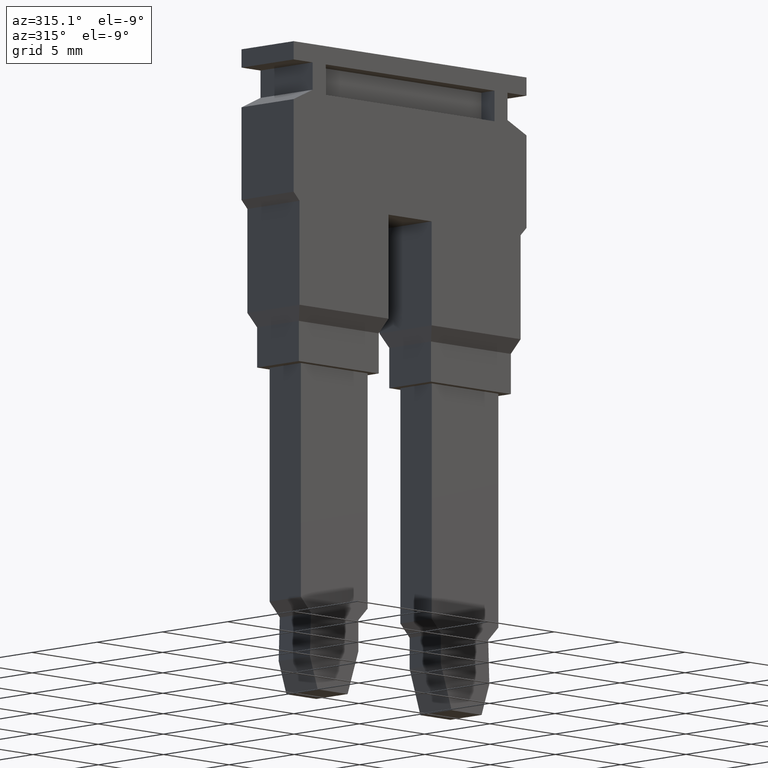
[diagram: clean part render]
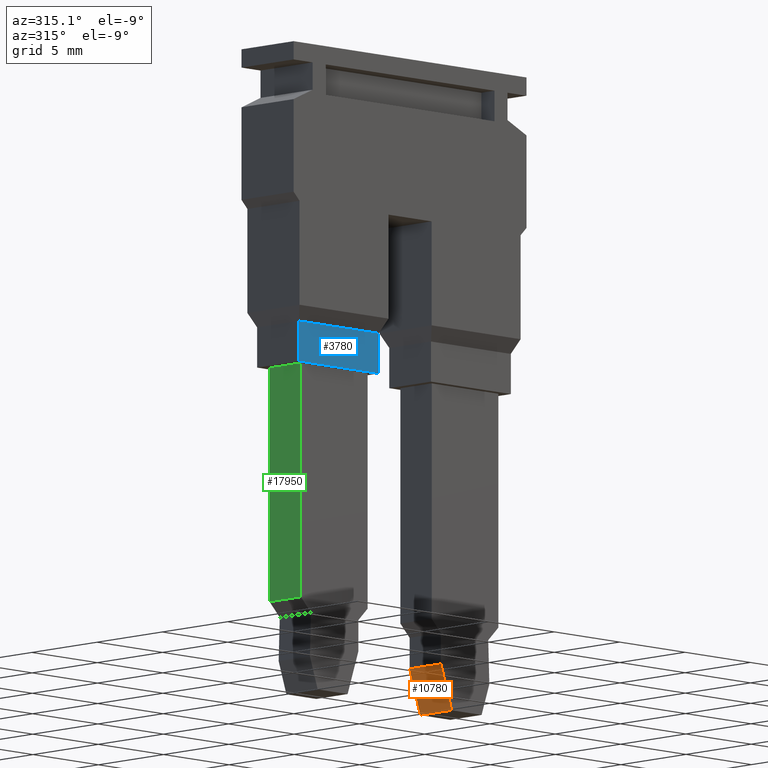
[diagram: same view with three faces highlighted in distinct colors, each labeled with its STEP entity id]
A machine part, auxiliary view with three faces highlighted in distinct colors.
Their STEP definitions:

[orange] entity #10780 — the highlighted planar face has unit normal (0.9476, 0, 0.3194).
#7830=CARTESIAN_POINT('',(-5.5999999994634,16.1494740000096,
3.97570635701532));
#7840=VERTEX_POINT('',#7830);
#7870=CARTESIAN_POINT('',(-5.5999999998083,35.8654186232052,
-2.66902050418254));
#7880=DIRECTION('',(-1.657692640812E-11,0.94762914753996,
-0.3193728209048));
#7890=VECTOR('',#7880,1.);
#7900=LINE('',#7870,#7890);
#7910=CARTESIAN_POINT('',(-5.59999999950626,18.5994740000096,3.15));
#7920=VERTEX_POINT('',#7910);
#7930=EDGE_CURVE('',#7840,#7920,#7900,.T.);
#9380=CARTESIAN_POINT('',(-3.19999999946334,16.1494740000516,
3.97570635701532));
#9390=VERTEX_POINT('',#9380);
#9420=CARTESIAN_POINT('',(-2.39999999946337,16.1494740000656,
3.97570635701532));
#9430=DIRECTION('',(-1.,-1.7492973788066E-11,2.33486982380412E-16));
#9440=VECTOR('',#9430,1.);
#9450=LINE('',#9420,#9440);
#9460=EDGE_CURVE('',#9390,#7840,#9450,.T.);
#10310=CARTESIAN_POINT('',(-3.19999999950621,18.5994740000516,3.15));
#10320=VERTEX_POINT('',#10310);
#10350=CARTESIAN_POINT('',(-3.1999999991808,4.76774175695027E-11,
9.41845057916103));
#10360=DIRECTION('',(1.65792024698041E-11,-0.94762914753996,
0.3193728209048));
#10370=VECTOR('',#10360,1.);
#10380=LINE('',#10350,#10370);
#10390=EDGE_CURVE('',#10320,#9390,#10380,.T.);
#10620=CARTESIAN_POINT('',(-5.59999999946936,16.4897875895572,
3.86101284915077));
#10630=DIRECTION('',(-5.58655912563829E-12,0.3193728209048,
0.94762914753996));
#10640=DIRECTION('',(1.657692640812E-11,-0.94762914753996,
0.3193728209048));
#10650=AXIS2_PLACEMENT_3D('',#10620,#10630,#10640);
#10660=PLANE('',#10650);
#10670=ORIENTED_EDGE('',*,*,#7930,.T.);
#10680=ORIENTED_EDGE('',*,*,#9460,.T.);
#10690=ORIENTED_EDGE('',*,*,#10390,.T.);
#10700=CARTESIAN_POINT('',(-2.39999999950623,18.5994740000656,3.15));
#10710=DIRECTION('',(-1.,-1.7492973788066E-11,2.33486982380412E-16));
#10720=VECTOR('',#10710,1.);
#10730=LINE('',#10700,#10720);
#10740=EDGE_CURVE('',#10320,#7920,#10730,.T.);
#10750=ORIENTED_EDGE('',*,*,#10740,.F.);
#10760=EDGE_LOOP('',(#10750,#10690,#10680,#10670));
#10770=FACE_OUTER_BOUND('',#10760,.T.);
#10780=ADVANCED_FACE('',(#10770),#10660,.F.);

[blue] entity #3780 — the highlighted planar face has unit normal (0, -1, -0).
#2740=CARTESIAN_POINT('',(-6.00000000000417,33.8994739999577,-8.1));
#2750=VERTEX_POINT('',#2740);
#2900=CARTESIAN_POINT('',(-6.00000000005228,36.0994739999707,-8.1));
#2910=VERTEX_POINT('',#2900);
#2940=CARTESIAN_POINT('',(-6.00000000004716,35.8654186231715,-8.1));
#2950=DIRECTION('',(2.18677767191205E-11,-1.,-8.24126146483239E-17));
#2960=VECTOR('',#2950,1.);
#2970=LINE('',#2940,#2960);
#2980=EDGE_CURVE('',#2910,#2750,#2970,.T.);
#3210=CARTESIAN_POINT('',(-6.00000000005228,36.0994739999635,
-1.99999999999995));
#3220=VERTEX_POINT('',#3210);
#3250=CARTESIAN_POINT('',(-6.00000000005227,36.0994739999756,
4.23237639386843));
#3260=DIRECTION('',(-5.55111512338107E-17,-4.00520652679299E-17,-1.));
#3270=VECTOR('',#3260,1.);
#3280=LINE('',#3250,#3270);
#3290=EDGE_CURVE('',#3220,#2910,#3280,.T.);
#3550=CARTESIAN_POINT('',(-6.00000000000417,33.8994739999577,
-1.99999999999995));
#3560=DIRECTION('',(-1.,-2.18677767191205E-11,5.55111512346866E-17));
#3570=DIRECTION('',(5.55111512364887E-17,-8.24126146468054E-17,1.));
#3580=AXIS2_PLACEMENT_3D('',#3550,#3560,#3570);
#3590=PLANE('',#3580);
#3600=ORIENTED_EDGE('',*,*,#3290,.T.);
#3610=CARTESIAN_POINT('',(-6.00000000004716,35.8654186231715,
-1.99999999999995));
#3620=DIRECTION('',(-2.18677767191205E-11,1.,8.24126146483239E-17));
#3630=VECTOR('',#3620,1.);
#3640=LINE('',#3610,#3630);
#3650=CARTESIAN_POINT('',(-6.00000000000417,33.8994739999577,
-1.99999999999995));
#3660=VERTEX_POINT('',#3650);
#3670=EDGE_CURVE('',#3660,#3220,#3640,.T.);
#3680=ORIENTED_EDGE('',*,*,#3670,.T.);
#3690=CARTESIAN_POINT('',(-6.00000000000417,33.8994739999578,
4.23237639386843));
#3700=DIRECTION('',(-5.55111512325968E-17,-9.55632164991219E-17,-1.));
#3710=VECTOR('',#3700,1.);
#3720=LINE('',#3690,#3710);
#3730=EDGE_CURVE('',#3660,#2750,#3720,.T.);
#3740=ORIENTED_EDGE('',*,*,#3730,.F.);
#3750=ORIENTED_EDGE('',*,*,#2980,.T.);
#3760=EDGE_LOOP('',(#3750,#3740,#3680,#3600));
#3770=FACE_OUTER_BOUND('',#3760,.T.);
#3780=ADVANCED_FACE('',(#3770),#3590,.T.);

[green] entity #17950 — the highlighted planar face has unit normal (1, 0, -0).
#12630=CARTESIAN_POINT('',(-2.3999999997739,33.8994740000365,
-7.54999999999995));
#12640=DIRECTION('',(-1.,-2.18677767191205E-11,2.33486982379133E-16));
#12650=VECTOR('',#12640,1.);
#12660=LINE('',#12630,#12650);
#12670=CARTESIAN_POINT('',(-3.19999999977389,33.899474000019,
-7.54999999999995));
#12680=VERTEX_POINT('',#12670);
#12690=CARTESIAN_POINT('',(-5.59999999977391,33.8994739999665,
-7.54999999999995));
#12700=VERTEX_POINT('',#12690);
#12710=EDGE_CURVE('',#12680,#12700,#12660,.T.);
#14920=CARTESIAN_POINT('',(-5.5999999998083,35.8654186232052,
-7.5499999999999));
#14930=DIRECTION('',(1.7492973788066E-11,-1.,-4.15479522035433E-16));
#14940=VECTOR('',#14930,1.);
#14950=LINE('',#14920,#14940);
#14960=CARTESIAN_POINT('',(-5.59999999954969,21.0820158402757,
-7.54999999999995));
#14970=VERTEX_POINT('',#14960);
#14980=EDGE_CURVE('',#12700,#14970,#14950,.T.);
#16080=CARTESIAN_POINT('',(-3.19999999954964,21.0820158403177,
-7.54999999999995));
#16090=VERTEX_POINT('',#16080);
#16620=CARTESIAN_POINT('',(-3.1999999991808,4.76774175695027E-11,
-7.54999999999996));
#16630=DIRECTION('',(1.74953625171753E-11,-1.,-4.15479522035837E-16));
#16640=VECTOR('',#16630,1.);
#16650=LINE('',#16620,#16640);
#16660=EDGE_CURVE('',#12680,#16090,#16650,.T.);
#17790=CARTESIAN_POINT('',(-5.59999999975467,32.7994740000074,
-7.54999999999995));
#17800=DIRECTION('',(2.3348698238768E-16,-4.15479522031348E-16,1.));
#17810=DIRECTION('',(1.7492973788066E-11,-1.,-4.15479522035433E-16));
#17820=AXIS2_PLACEMENT_3D('',#17790,#17800,#17810);
#17830=PLANE('',#17820);
#17840=ORIENTED_EDGE('',*,*,#14980,.F.);
#17850=CARTESIAN_POINT('',(-2.4,21.0820158403317,-7.54999999999995));
#17860=DIRECTION('',(1.,1.7492973788066E-11,-2.33486982379774E-16));
#17870=VECTOR('',#17860,1.);
#17880=LINE('',#17850,#17870);
#17890=EDGE_CURVE('',#14970,#16090,#17880,.T.);
#17900=ORIENTED_EDGE('',*,*,#17890,.F.);
#17910=ORIENTED_EDGE('',*,*,#16660,.T.);
#17920=ORIENTED_EDGE('',*,*,#12710,.F.);
#17930=EDGE_LOOP('',(#17920,#17910,#17900,#17840));
#17940=FACE_OUTER_BOUND('',#17930,.T.);
#17950=ADVANCED_FACE('',(#17940),#17830,.F.);